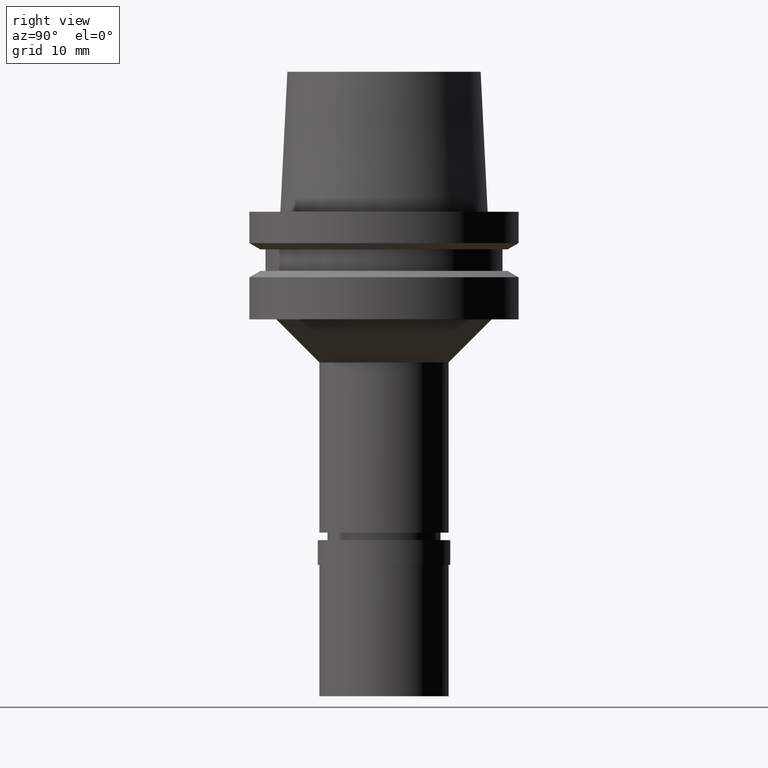
[diagram: clean part render]
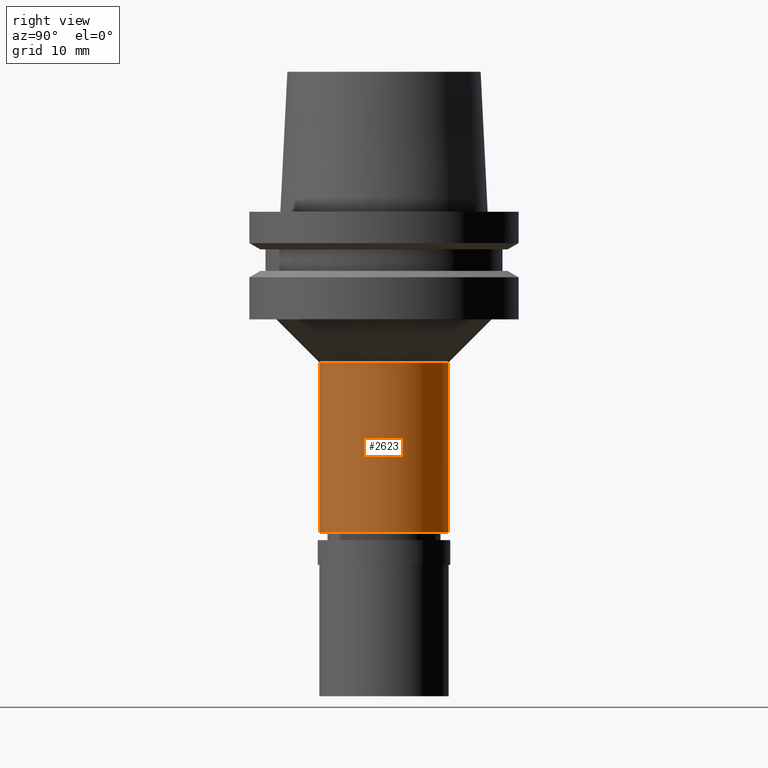
[diagram: same view with one face highlighted and labeled with its STEP entity id]
A machine part, right view. The second image highlights one B-rep face of the part: STEP entity #2623.
In plain terms, the highlighted cylindrical surface (partial cylindrical patch) has radius 6 mm, axis along (0, 0, 1).
Its self-contained STEP definition (entity closure, byte-faithful):
#44 = LINE ( 'NONE', #685, #2119 ) ;
#115 = LINE ( 'NONE', #949, #1206 ) ;
#235 = FACE_OUTER_BOUND ( 'NONE', #2478, .T. ) ;
#245 = DIRECTION ( 'NONE',  ( 0.0000000000000000000, 1.000000000000000000, 0.0000000000000000000 ) ) ;
#274 = DIRECTION ( 'NONE',  ( 0.0000000000000000000, 0.0000000000000000000, -1.000000000000000000 ) ) ;
#347 = CARTESIAN_POINT ( 'NONE',  ( 0.0000000000000000000, 0.0000000000000000000, -14.00000000000000000 ) ) ;
#404 = AXIS2_PLACEMENT_3D ( 'NONE', #1226, #2565, #715 ) ;
#600 = CARTESIAN_POINT ( 'NONE',  ( 0.0000000000000000000, -6.000000000000000000, -14.00000000000000000 ) ) ;
#605 = CYLINDRICAL_SURFACE ( 'NONE', #404, 6.000000000000000000 ) ;
#657 = DIRECTION ( 'NONE',  ( 0.0000000000000000000, -1.000000000000000000, 0.0000000000000000000 ) ) ;
#685 = CARTESIAN_POINT ( 'NONE',  ( 0.0000000000000000000, -6.000000000000000000, -14.00000000000000000 ) ) ;
#715 = DIRECTION ( 'NONE',  ( 0.0000000000000000000, 1.000000000000000000, 0.0000000000000000000 ) ) ;
#829 = ORIENTED_EDGE ( 'NONE', *, *, #2092, .T. ) ;
#949 = CARTESIAN_POINT ( 'NONE',  ( 0.0000000000000000000, 6.000000000000000000, -14.00000000000000000 ) ) ;
#980 = EDGE_CURVE ( 'NONE', #1448, #1004, #115, .T. ) ;
#1004 = VERTEX_POINT ( 'NONE', #1404 ) ;
#1198 = DIRECTION ( 'NONE',  ( 0.0000000000000000000, 0.0000000000000000000, -1.000000000000000000 ) ) ;
#1206 = VECTOR ( 'NONE', #1198, 1000.000000000000000 ) ;
#1226 = CARTESIAN_POINT ( 'NONE',  ( 0.0000000000000000000, 0.0000000000000000000, -43.70000000000000284 ) ) ;
#1269 = VERTEX_POINT ( 'NONE', #600 ) ;
#1271 = EDGE_CURVE ( 'NONE', #1667, #1004, #2332, .T. ) ;
#1404 = CARTESIAN_POINT ( 'NONE',  ( 0.0000000000000000000, 6.000000000000000000, -29.80000000000000071 ) ) ;
#1448 = VERTEX_POINT ( 'NONE', #2522 ) ;
#1477 = ORIENTED_EDGE ( 'NONE', *, *, #2440, .T. ) ;
#1478 = ORIENTED_EDGE ( 'NONE', *, *, #980, .F. ) ;
#1667 = VERTEX_POINT ( 'NONE', #2185 ) ;
#1839 = AXIS2_PLACEMENT_3D ( 'NONE', #347, #2234, #245 ) ;
#1847 = DIRECTION ( 'NONE',  ( 0.0000000000000000000, 0.0000000000000000000, 1.000000000000000000 ) ) ;
#2063 = CIRCLE ( 'NONE', #1839, 6.000000000000000000 ) ;
#2092 = EDGE_CURVE ( 'NONE', #1269, #1667, #44, .T. ) ;
#2119 = VECTOR ( 'NONE', #274, 1000.000000000000000 ) ;
#2164 = AXIS2_PLACEMENT_3D ( 'NONE', #2479, #1847, #657 ) ;
#2185 = CARTESIAN_POINT ( 'NONE',  ( 0.0000000000000000000, -6.000000000000000000, -29.80000000000000071 ) ) ;
#2234 = DIRECTION ( 'NONE',  ( 0.0000000000000000000, 0.0000000000000000000, -1.000000000000000000 ) ) ;
#2332 = CIRCLE ( 'NONE', #2164, 6.000000000000000000 ) ;
#2438 = ORIENTED_EDGE ( 'NONE', *, *, #1271, .T. ) ;
#2440 = EDGE_CURVE ( 'NONE', #1448, #1269, #2063, .T. ) ;
#2478 = EDGE_LOOP ( 'NONE', ( #1477, #829, #2438, #1478 ) ) ;
#2479 = CARTESIAN_POINT ( 'NONE',  ( 0.0000000000000000000, 0.0000000000000000000, -29.80000000000000071 ) ) ;
#2522 = CARTESIAN_POINT ( 'NONE',  ( 0.0000000000000000000, 6.000000000000000000, -14.00000000000000000 ) ) ;
#2565 = DIRECTION ( 'NONE',  ( 0.0000000000000000000, 0.0000000000000000000, 1.000000000000000000 ) ) ;
#2623 = ADVANCED_FACE ( 'NONE', ( #235 ), #605, .T. ) ;